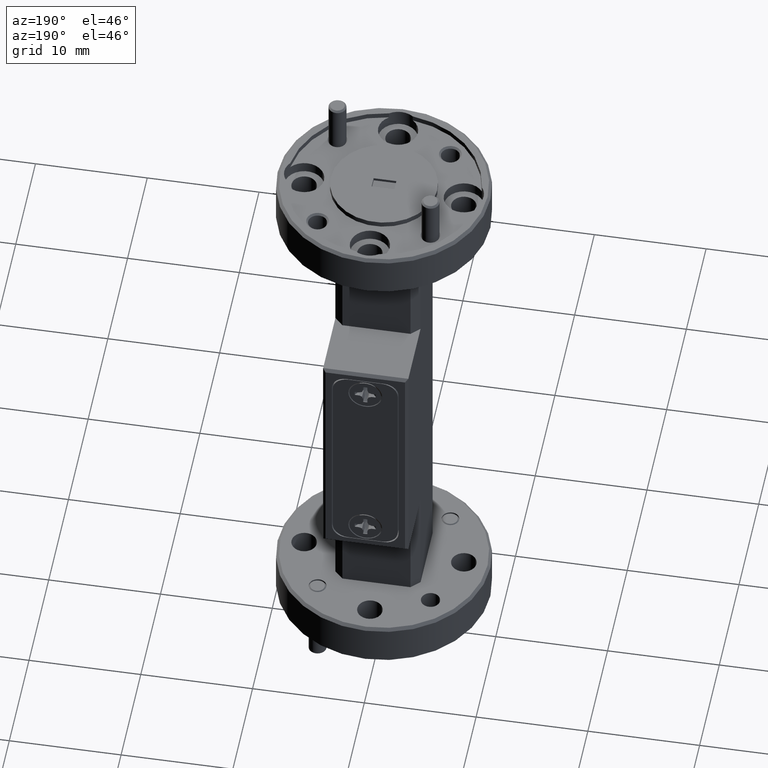
[diagram: clean part render]
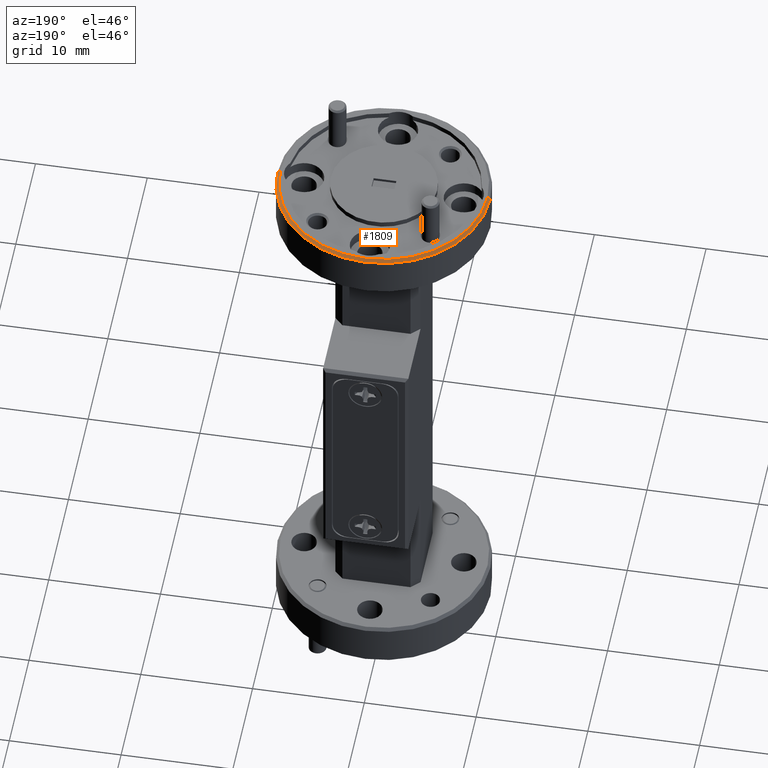
[diagram: same view with one face highlighted and labeled with its STEP entity id]
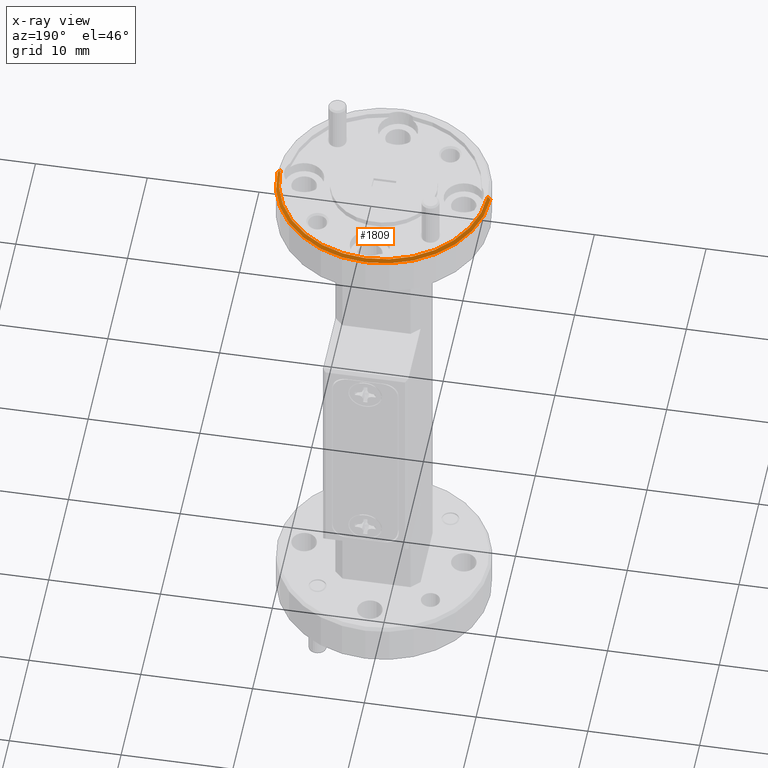
[diagram: x-ray of the same camera — body ghosted, the highlighted face saturated]
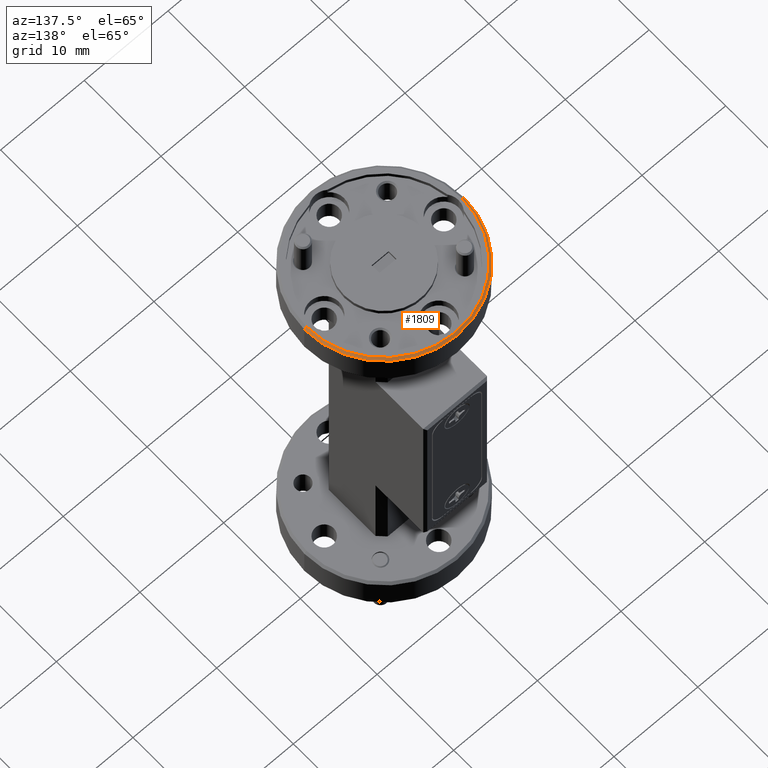
[diagram: same view with one face highlighted and labeled with its STEP entity id]
A machine part, auxiliary view. The second image highlights one B-rep face of the part: STEP entity #1809.
The next image is the same camera in x-ray: the body ghosted, the highlighted face saturated — about 0% of this face is hidden behind the body in this view.
A second angle (auxiliary view) of the same face is appended — the face is thin or edge-on in the first view.
In plain terms, the highlighted conical surface has half-angle 45 deg.
Its self-contained STEP definition (entity closure, byte-faithful):
#126 = EDGE_CURVE ( 'NONE', #6210, #7527, #477, .T. ) ;
#334 = DIRECTION ( 'NONE',  ( 1.000000000000000000, 0.000000000000000000, 0.000000000000000000 ) ) ;
#404 = VECTOR ( 'NONE', #550, 39.37007874015748143 ) ;
#477 = LINE ( 'NONE', #2928, #404 ) ;
#550 = DIRECTION ( 'NONE',  ( 0.7071067811865547892, 8.659560562355021605E-17, -0.7071067811865402453 ) ) ;
#904 = DIRECTION ( 'NONE',  ( -0.000000000000000000, 0.000000000000000000, 1.000000000000000000 ) ) ;
#1051 = DIRECTION ( 'NONE',  ( 1.000000000000000000, 0.000000000000000000, 0.000000000000000000 ) ) ;
#1133 = EDGE_CURVE ( 'NONE', #1657, #7527, #4493, .T. ) ;
#1280 = CONICAL_SURFACE ( 'NONE', #7081, 0.3650000000000000466, 0.7853981633974586041 ) ;
#1561 = ORIENTED_EDGE ( 'NONE', *, *, #3148, .F. ) ;
#1657 = VERTEX_POINT ( 'NONE', #2654 ) ;
#1758 = AXIS2_PLACEMENT_3D ( 'NONE', #6272, #7420, #1051 ) ;
#1809 = ADVANCED_FACE ( 'NONE', ( #7206 ), #1280, .T. ) ;
#1900 = DIRECTION ( 'NONE',  ( 0.000000000000000000, 0.000000000000000000, -1.000000000000000000 ) ) ;
#1948 = CARTESIAN_POINT ( 'NONE',  ( 0.3750000000000000555, 0.000000000000000000, 0.9900000000000002132 ) ) ;
#1965 = ORIENTED_EDGE ( 'NONE', *, *, #5167, .F. ) ;
#2654 = CARTESIAN_POINT ( 'NONE',  ( -0.3750000000000000555, 4.592425496802575451E-17, 0.9900000000000002132 ) ) ;
#2928 = CARTESIAN_POINT ( 'NONE',  ( 0.3650000000000000466, 4.469960816887840402E-17, 1.000000000000000000 ) ) ;
#3148 = EDGE_CURVE ( 'NONE', #7139, #1657, #4826, .T. ) ;
#3608 = CARTESIAN_POINT ( 'NONE',  ( -0.3650000000000000466, 0.000000000000000000, 1.000000000000000000 ) ) ;
#3720 = DIRECTION ( 'NONE',  ( -1.000000000000000000, 0.000000000000000000, 0.000000000000000000 ) ) ;
#3798 = EDGE_LOOP ( 'NONE', ( #1965, #6169, #5115, #1561 ) ) ;
#3865 = AXIS2_PLACEMENT_3D ( 'NONE', #7314, #904, #334 ) ;
#3899 = VECTOR ( 'NONE', #7168, 39.37007874015748143 ) ;
#4235 = CARTESIAN_POINT ( 'NONE',  ( 0.000000000000000000, 0.000000000000000000, 1.000000000000000000 ) ) ;
#4273 = CARTESIAN_POINT ( 'NONE',  ( 0.3650000000000000466, 4.531193156845207927E-17, 1.000000000000000000 ) ) ;
#4493 = CIRCLE ( 'NONE', #1758, 0.3750000000000000555 ) ;
#4826 = LINE ( 'NONE', #3608, #3899 ) ;
#5115 = ORIENTED_EDGE ( 'NONE', *, *, #1133, .F. ) ;
#5167 = EDGE_CURVE ( 'NONE', #6210, #7139, #5738, .T. ) ;
#5738 = CIRCLE ( 'NONE', #3865, 0.3650000000000000466 ) ;
#6169 = ORIENTED_EDGE ( 'NONE', *, *, #126, .T. ) ;
#6210 = VERTEX_POINT ( 'NONE', #4273 ) ;
#6272 = CARTESIAN_POINT ( 'NONE',  ( 0.000000000000000000, 0.000000000000000000, 0.9900000000000002132 ) ) ;
#6681 = CARTESIAN_POINT ( 'NONE',  ( -0.3650000000000000466, 0.000000000000000000, 1.000000000000000000 ) ) ;
#7081 = AXIS2_PLACEMENT_3D ( 'NONE', #4235, #1900, #3720 ) ;
#7139 = VERTEX_POINT ( 'NONE', #6681 ) ;
#7168 = DIRECTION ( 'NONE',  ( -0.7071067811865547892, 0.000000000000000000, -0.7071067811865402453 ) ) ;
#7206 = FACE_OUTER_BOUND ( 'NONE', #3798, .T. ) ;
#7314 = CARTESIAN_POINT ( 'NONE',  ( 0.000000000000000000, 0.000000000000000000, 1.000000000000000000 ) ) ;
#7420 = DIRECTION ( 'NONE',  ( 0.000000000000000000, 0.000000000000000000, -1.000000000000000000 ) ) ;
#7527 = VERTEX_POINT ( 'NONE', #1948 ) ;